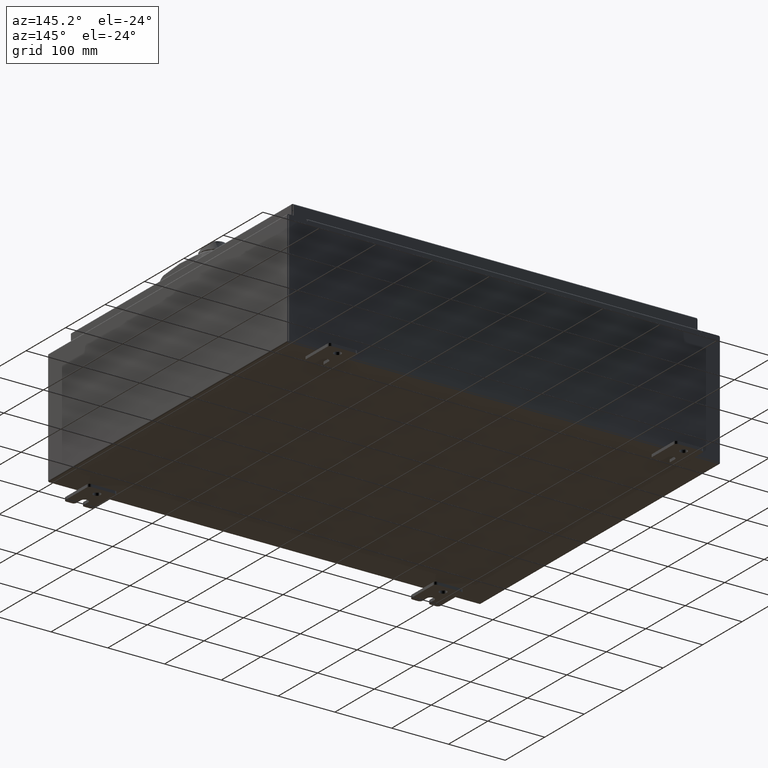
[diagram: clean part render]
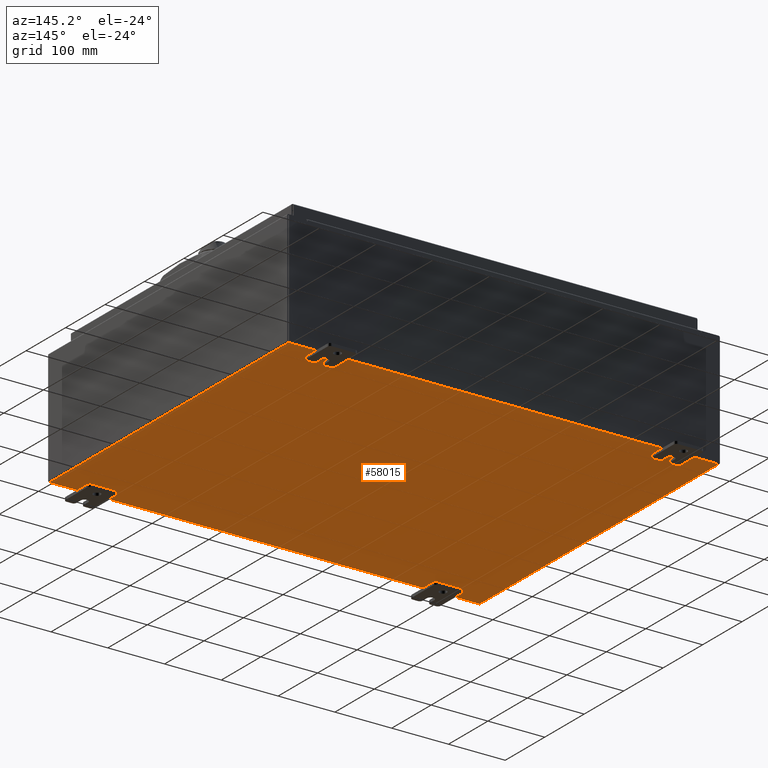
[diagram: same view with one face highlighted and labeled with its STEP entity id]
A machine part, auxiliary view. The second image highlights one B-rep face of the part: STEP entity #58015.
In plain terms, the highlighted planar face has unit normal (0, 0, -1).
Its self-contained STEP definition (entity closure, byte-faithful):
#570 = VERTEX_POINT ( 'NONE', #28364 ) ;
#2265 = EDGE_CURVE ( 'NONE', #570, #62849, #49503, .T. ) ;
#7609 = VECTOR ( 'NONE', #70320, 39.37007874015748100 ) ;
#7944 = LINE ( 'NONE', #96075, #75038 ) ;
#8148 = DIRECTION ( 'NONE',  ( -1.000000000000000000, -0.0000000000000000000, -0.0000000000000000000 ) ) ;
#9589 = ORIENTED_EDGE ( 'NONE', *, *, #111969, .T. ) ;
#10007 = CARTESIAN_POINT ( 'NONE',  ( -15.00000000000000000, -11.92530000000000400, -0.07470000000000000300 ) ) ;
#17664 = CARTESIAN_POINT ( 'NONE',  ( -14.91230000000000000, 11.92529999999999800, -0.07470000000000000300 ) ) ;
#21176 = CARTESIAN_POINT ( 'NONE',  ( 14.91230000000000000, -11.92530000000000400, -0.07470000000000000300 ) ) ;
#24797 = CARTESIAN_POINT ( 'NONE',  ( -15.00000000000000000, 11.92529999999999800, -0.07470000000000000300 ) ) ;
#24923 = ORIENTED_EDGE ( 'NONE', *, *, #48021, .T. ) ;
#26656 = CARTESIAN_POINT ( 'NONE',  ( -14.91230000000000000, -11.92530000000000400, -0.07469999999999994700 ) ) ;
#28106 = LINE ( 'NONE', #26656, #7609 ) ;
#28364 = CARTESIAN_POINT ( 'NONE',  ( 14.91230000000000000, 11.92529999999999600, -0.07469999999999994700 ) ) ;
#30912 = EDGE_CURVE ( 'NONE', #94523, #51108, #50697, .T. ) ;
#32958 = DIRECTION ( 'NONE',  ( 0.0000000000000000000, 0.0000000000000000000, -1.000000000000000000 ) ) ;
#36483 = ORIENTED_EDGE ( 'NONE', *, *, #2265, .F. ) ;
#48021 = EDGE_CURVE ( 'NONE', #570, #51108, #7944, .T. ) ;
#49503 = LINE ( 'NONE', #24797, #67319 ) ;
#50697 = LINE ( 'NONE', #10007, #94599 ) ;
#51108 = VERTEX_POINT ( 'NONE', #21176 ) ;
#52349 = DIRECTION ( 'NONE',  ( -0.0000000000000000000, -1.000000000000000000, -0.0000000000000000000 ) ) ;
#53545 = AXIS2_PLACEMENT_3D ( 'NONE', #67783, #32958, #94230 ) ;
#58015 = ADVANCED_FACE ( 'NONE', ( #84268 ), #85413, .T. ) ;
#62849 = VERTEX_POINT ( 'NONE', #17664 ) ;
#67319 = VECTOR ( 'NONE', #8148, 39.37007874015748100 ) ;
#67783 = CARTESIAN_POINT ( 'NONE',  ( 0.0000000000000000000, 0.0000000000000000000, -0.07470000000000000300 ) ) ;
#70320 = DIRECTION ( 'NONE',  ( -0.0000000000000000000, 1.000000000000000000, -0.0000000000000000000 ) ) ;
#71139 = EDGE_LOOP ( 'NONE', ( #110413, #9589, #36483, #24923 ) ) ;
#71194 = DIRECTION ( 'NONE',  ( 1.000000000000000000, 0.0000000000000000000, 0.0000000000000000000 ) ) ;
#75038 = VECTOR ( 'NONE', #52349, 39.37007874015748100 ) ;
#84268 = FACE_OUTER_BOUND ( 'NONE', #71139, .T. ) ;
#84419 = CARTESIAN_POINT ( 'NONE',  ( -14.91230000000000000, -11.92530000000000000, -0.07469999999999994700 ) ) ;
#85413 = PLANE ( 'NONE',  #53545 ) ;
#94230 = DIRECTION ( 'NONE',  ( -1.000000000000000000, 0.0000000000000000000, -0.0000000000000000000 ) ) ;
#94523 = VERTEX_POINT ( 'NONE', #84419 ) ;
#94599 = VECTOR ( 'NONE', #71194, 39.37007874015748100 ) ;
#96075 = CARTESIAN_POINT ( 'NONE',  ( 14.91230000000000000, 11.92529999999999800, -0.07469999999999994700 ) ) ;
#110413 = ORIENTED_EDGE ( 'NONE', *, *, #30912, .F. ) ;
#111969 = EDGE_CURVE ( 'NONE', #94523, #62849, #28106, .T. ) ;